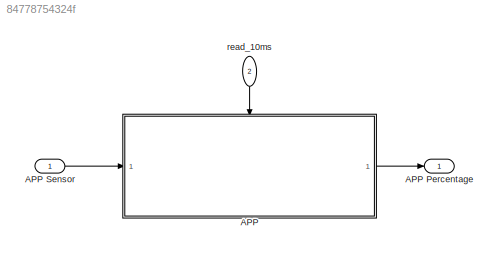
MODEL slx_84778754324f
KIND model
CONFIG AbsTol = auto
CONFIG EnableMultiTasking = off
CONFIG FixedStep = 0.005
CONFIG MaxStep = auto
CONFIG MinStep = auto
CONFIG RelTol = 1e-3
CONFIG SampleTimeConstraint = Unconstrained
CONFIG SolverName = FixedStepDiscrete
CONFIG StartTime = 0.0
CONFIG StopTime = 10.0
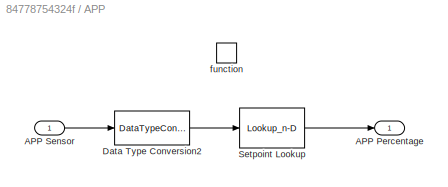
BLOCK [SubSystem] APP
  SystemSampleTime = 0.005
  TreatAsAtomicUnit = on
BLOCK [Outport] APP Percentage
  OutDataTypeStr = single
  PortDimensions = 1
  SamplingMode = Sample based
  SignalType = real
BLOCK [Inport] APP Sensor
  OutDataTypeStr = uint16
  PortDimensions = 1
  SamplingMode = Sample based
  SignalType = real
BLOCK [Outport] APP/APP Percentage
BLOCK [Inport] APP/APP Sensor
BLOCK [DataTypeConversion] APP/Data Type Conversion2
  OutDataTypeStr = single
  RndMeth = Floor
  SaturateOnIntegerOverflow = off
BLOCK [Lookup_n-D] APP/Setpoint Lookup
  BreakpointsForDimension1 = TPSPercentBkpt
  BreakpointsForDimension1DataTypeStr = single
  DataSpecification = Lookup table object
  ExtrapMethod = Clip
  IndexSearchMethod = Linear search
  InputPortMap = u0
  InternalRulePriority = Speed
  LookupTableObject = Percent
  NumberOfTableDimensions = 1
  OutDataTypeStr = single
  RndMeth = Simplest
  Table = TPSPercentTbl
  TableDataTypeStr = single
BLOCK [TriggerPort] APP/function
  PortDimensions = 1
  SampleTime = Ts*2
  SampleTimeType = periodic
  StatesWhenEnabling = held
  TriggerType = function-call
  VariantControl = (inherit)
BLOCK [Inport] read_10ms
  NameLocation = left
  OutDataTypeStr = uint16
  OutputFunctionCall = on
  Port = 2
  PortDimensions = 1
  SampleTime = 0.02
  SamplingMode = Sample based
  SignalType = real
LINE APP Sensor:1 -> APP:1
LINE APP/APP Sensor:1 -> APP/Data Type Conversion2:1
LINE APP/Data Type Conversion2:1 -> APP/Setpoint Lookup:1
LINE APP/Setpoint Lookup:1 -> APP/APP Percentage:1
LINE APP:1 -> APP Percentage:1
LINE read_10ms:1 -> APP:trigger
